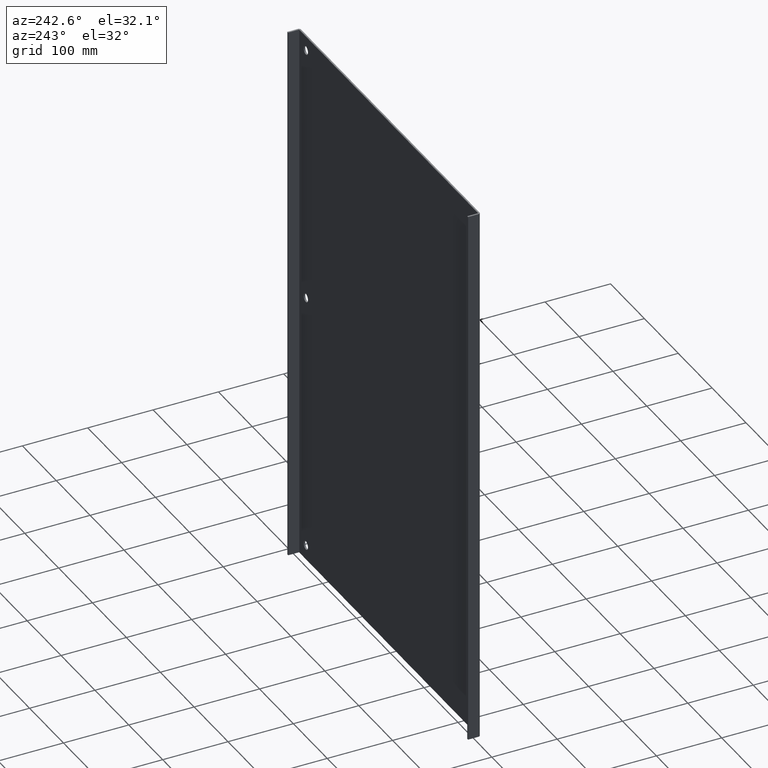
[diagram: clean part render]
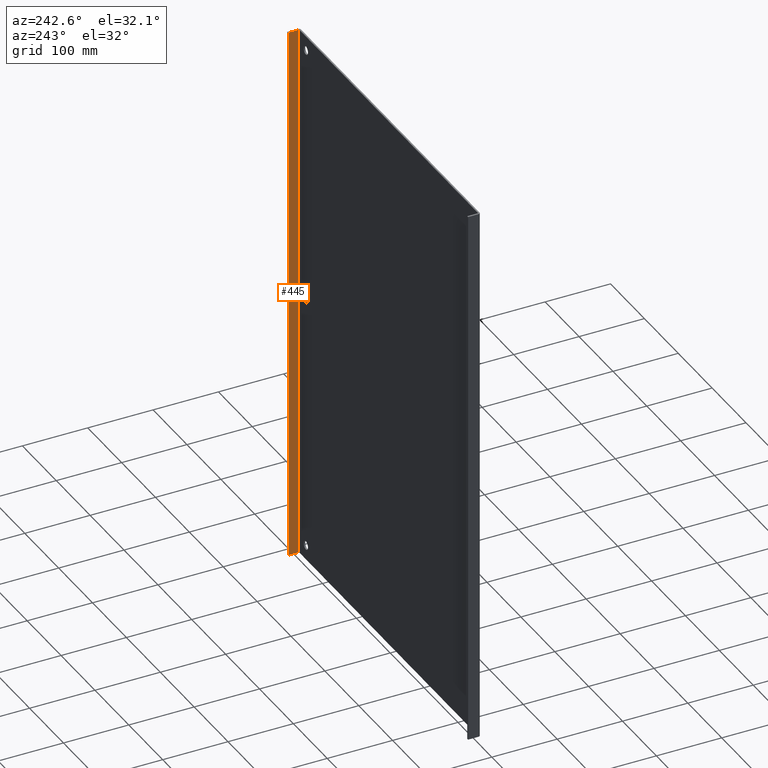
[diagram: same view with one face highlighted and labeled with its STEP entity id]
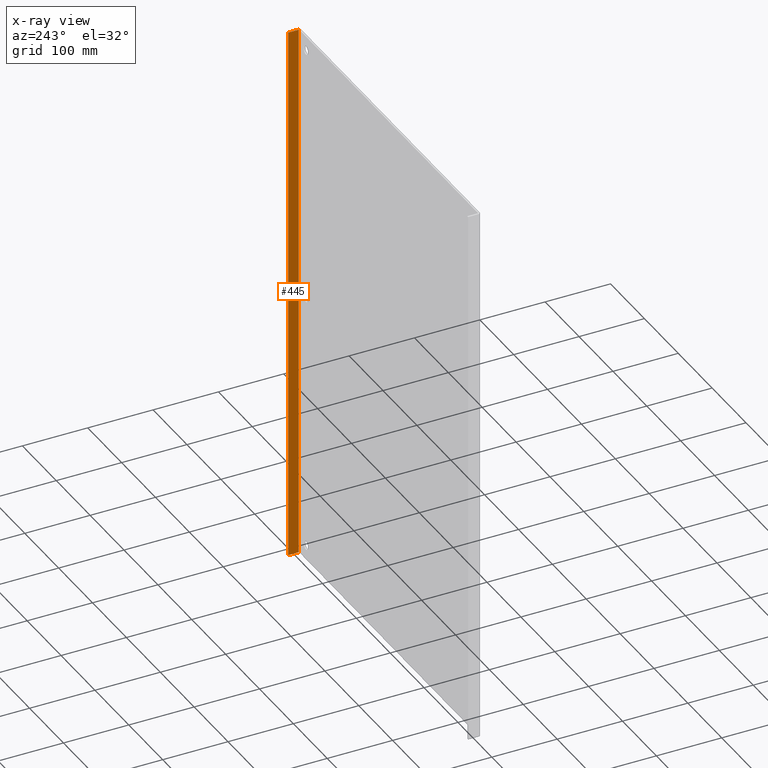
[diagram: x-ray of the same camera — body ghosted, the highlighted face saturated]
A machine part, auxiliary view. The second image highlights one B-rep face of the part: STEP entity #445.
The next image is the same camera in x-ray: the body ghosted, the highlighted face saturated — about 0% of this face is hidden behind the body in this view.
In plain terms, the highlighted planar face has unit normal (1, 0, 0).
Its self-contained STEP definition (entity closure, byte-faithful):
#37 = EDGE_CURVE ( 'NONE', #187, #979, #415, .T. ) ;
#40 = VECTOR ( 'NONE', #206, 39.37007874015748143 ) ;
#109 = PLANE ( 'NONE',  #850 ) ;
#123 = DIRECTION ( 'NONE',  ( -6.123233995736769734E-17, 1.000000000000000000, 0.0000000000000000000 ) ) ;
#148 = VERTEX_POINT ( 'NONE', #666 ) ;
#180 = CARTESIAN_POINT ( 'NONE',  ( 10.40499999999999936, 0.7500000000000001110, 16.50000000000000000 ) ) ;
#187 = VERTEX_POINT ( 'NONE', #180 ) ;
#206 = DIRECTION ( 'NONE',  ( -0.0000000000000000000, -1.000000000000000000, 0.0000000000000000000 ) ) ;
#207 = EDGE_CURVE ( 'NONE', #314, #979, #789, .T. ) ;
#214 = DIRECTION ( 'NONE',  ( 1.000000000000000000, 6.123233995736769734E-17, 0.0000000000000000000 ) ) ;
#220 = CARTESIAN_POINT ( 'NONE',  ( 10.40499999999999936, 0.09379024048199331720, 16.50000000000000000 ) ) ;
#239 = ORIENTED_EDGE ( 'NONE', *, *, #207, .F. ) ;
#244 = CARTESIAN_POINT ( 'NONE',  ( 10.40499999999999936, 0.1250000000000000000, 16.50000000000000000 ) ) ;
#261 = CARTESIAN_POINT ( 'NONE',  ( 10.40499999999999936, 0.7500000000000001110, -16.50000000000000355 ) ) ;
#263 = LINE ( 'NONE', #854, #40 ) ;
#269 = CARTESIAN_POINT ( 'NONE',  ( 10.40499999999999936, 0.1250000000000000000, -16.50000000000000000 ) ) ;
#314 = VERTEX_POINT ( 'NONE', #269 ) ;
#327 = FACE_OUTER_BOUND ( 'NONE', #342, .T. ) ;
#342 = EDGE_LOOP ( 'NONE', ( #1021, #690, #239, #563 ) ) ;
#365 = VECTOR ( 'NONE', #825, 39.37007874015748143 ) ;
#415 = LINE ( 'NONE', #802, #748 ) ;
#445 = ADVANCED_FACE ( 'NONE', ( #327 ), #109, .F. ) ;
#492 = EDGE_CURVE ( 'NONE', #187, #148, #263, .T. ) ;
#563 = ORIENTED_EDGE ( 'NONE', *, *, #800, .F. ) ;
#659 = VECTOR ( 'NONE', #742, 39.37007874015748143 ) ;
#666 = CARTESIAN_POINT ( 'NONE',  ( 10.40499999999999936, 0.1250000000000000000, 16.50000000000000000 ) ) ;
#690 = ORIENTED_EDGE ( 'NONE', *, *, #37, .T. ) ;
#742 = DIRECTION ( 'NONE',  ( -0.0000000000000000000, 0.0000000000000000000, -1.000000000000000000 ) ) ;
#748 = VECTOR ( 'NONE', #804, 39.37007874015748143 ) ;
#757 = LINE ( 'NONE', #244, #659 ) ;
#789 = LINE ( 'NONE', #981, #365 ) ;
#800 = EDGE_CURVE ( 'NONE', #148, #314, #757, .T. ) ;
#802 = CARTESIAN_POINT ( 'NONE',  ( 10.40499999999999936, 0.7500000000000001110, -16.50000000000000000 ) ) ;
#804 = DIRECTION ( 'NONE',  ( 0.0000000000000000000, -0.0000000000000000000, -1.000000000000000000 ) ) ;
#825 = DIRECTION ( 'NONE',  ( 0.0000000000000000000, 1.000000000000000000, 0.0000000000000000000 ) ) ;
#850 = AXIS2_PLACEMENT_3D ( 'NONE', #220, #214, #123 ) ;
#854 = CARTESIAN_POINT ( 'NONE',  ( 10.40499999999999936, 0.09499999999999998723, 16.50000000000000000 ) ) ;
#979 = VERTEX_POINT ( 'NONE', #261 ) ;
#981 = CARTESIAN_POINT ( 'NONE',  ( 10.40499999999999936, 0.09499999999999998723, -16.50000000000000355 ) ) ;
#1021 = ORIENTED_EDGE ( 'NONE', *, *, #492, .F. ) ;